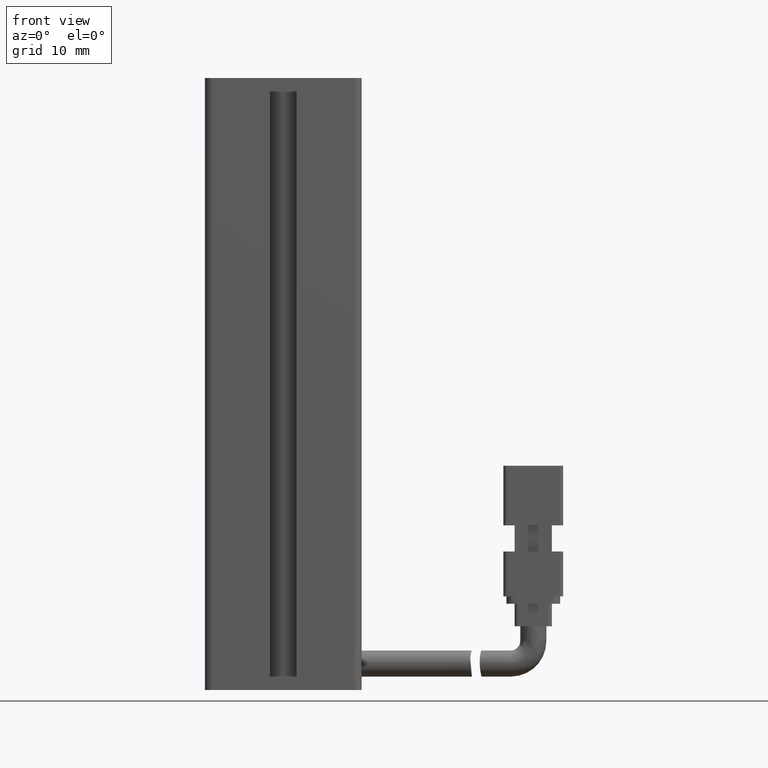
[diagram: clean part render]
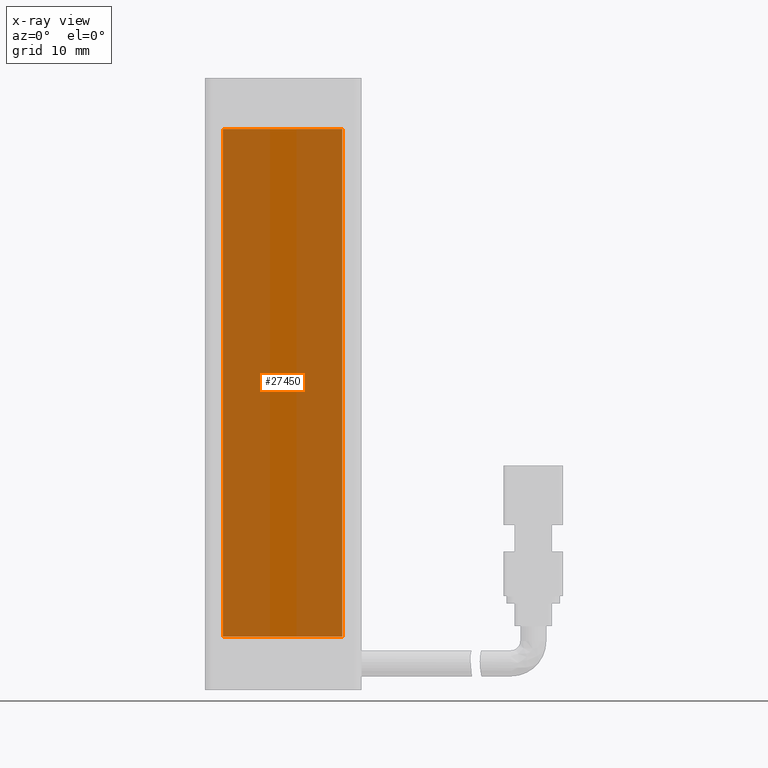
[diagram: x-ray — body ghosted, one internal face saturated and labeled with its STEP entity id]
A machine part, front view, then the same camera in x-ray: the body is ghosted and one INTERNAL B-rep face — a face not visible from any outside direction — is saturated and labeled: STEP entity #27450.
In plain terms, the highlighted planar face has unit normal (0, 1, -0).
Its self-contained STEP definition (entity closure, byte-faithful):
#15 = VECTOR ( 'NONE', #10712, 1000.000000000000000 ) ;
#66 = VECTOR ( 'NONE', #3372, 1000.000000000000000 ) ;
#982 = CARTESIAN_POINT ( 'NONE',  ( 48.82537974683540900, 23.49073232304836600, -114.8499999999999700 ) ) ;
#2269 = VERTEX_POINT ( 'NONE', #6829 ) ;
#3011 = EDGE_CURVE ( 'NONE', #4318, #4907, #6094, .T. ) ;
#3372 = DIRECTION ( 'NONE',  ( -0.0000000000000000000, -0.0000000000000000000, -1.000000000000000000 ) ) ;
#3930 = LINE ( 'NONE', #15859, #21222 ) ;
#4318 = VERTEX_POINT ( 'NONE', #19058 ) ;
#4907 = VERTEX_POINT ( 'NONE', #5464 ) ;
#5464 = CARTESIAN_POINT ( 'NONE',  ( 48.82537974683540900, 23.49073232304836600, -80.84999999999998000 ) ) ;
#6087 = EDGE_CURVE ( 'NONE', #4907, #2269, #15136, .T. ) ;
#6094 = LINE ( 'NONE', #14917, #15 ) ;
#6324 = EDGE_CURVE ( 'NONE', #2269, #7967, #17253, .T. ) ;
#6829 = CARTESIAN_POINT ( 'NONE',  ( 48.82537974683540900, 23.49073232304836600, -148.8499999999999900 ) ) ;
#7967 = VERTEX_POINT ( 'NONE', #23923 ) ;
#8149 = PLANE ( 'NONE',  #16588 ) ;
#10712 = DIRECTION ( 'NONE',  ( 1.000000000000000000, -7.380418287155808400E-032, -0.0000000000000000000 ) ) ;
#11222 = EDGE_CURVE ( 'NONE', #7967, #4318, #3930, .T. ) ;
#11252 = DIRECTION ( 'NONE',  ( 0.0000000000000000000, 0.0000000000000000000, 1.000000000000000000 ) ) ;
#11842 = VECTOR ( 'NONE', #27533, 1000.000000000000000 ) ;
#13403 = DIRECTION ( 'NONE',  ( 7.380418287155808400E-032, 1.000000000000000000, -0.0000000000000000000 ) ) ;
#13788 = EDGE_LOOP ( 'NONE', ( #15973, #14800, #27629, #22058 ) ) ;
#14800 = ORIENTED_EDGE ( 'NONE', *, *, #6324, .F. ) ;
#14917 = CARTESIAN_POINT ( 'NONE',  ( 40.82537974683540900, 23.49073232304836600, -80.84999999999998000 ) ) ;
#15136 = LINE ( 'NONE', #982, #66 ) ;
#15859 = CARTESIAN_POINT ( 'NONE',  ( 32.82537974683540900, 23.49073232304836600, -114.8499999999999700 ) ) ;
#15973 = ORIENTED_EDGE ( 'NONE', *, *, #11222, .F. ) ;
#16588 = AXIS2_PLACEMENT_3D ( 'NONE', #29528, #13403, #24880 ) ;
#17019 = FACE_OUTER_BOUND ( 'NONE', #13788, .T. ) ;
#17253 = LINE ( 'NONE', #27730, #11842 ) ;
#19058 = CARTESIAN_POINT ( 'NONE',  ( 32.82537974683540900, 23.49073232304836600, -80.84999999999998000 ) ) ;
#21222 = VECTOR ( 'NONE', #11252, 1000.000000000000000 ) ;
#22058 = ORIENTED_EDGE ( 'NONE', *, *, #3011, .F. ) ;
#23923 = CARTESIAN_POINT ( 'NONE',  ( 32.82537974683540900, 23.49073232304836600, -148.8499999999999900 ) ) ;
#24880 = DIRECTION ( 'NONE',  ( -1.000000000000000000, 7.380418287155808400E-032, 0.0000000000000000000 ) ) ;
#27450 = ADVANCED_FACE ( 'NONE', ( #17019 ), #8149, .F. ) ;
#27533 = DIRECTION ( 'NONE',  ( -1.000000000000000000, 7.380418287155808400E-032, 0.0000000000000000000 ) ) ;
#27629 = ORIENTED_EDGE ( 'NONE', *, *, #6087, .F. ) ;
#27730 = CARTESIAN_POINT ( 'NONE',  ( 40.82537974683540900, 23.49073232304836600, -148.8499999999999900 ) ) ;
#29528 = CARTESIAN_POINT ( 'NONE',  ( 40.82537974683540900, 23.49073232304836600, -114.8499999999999700 ) ) ;